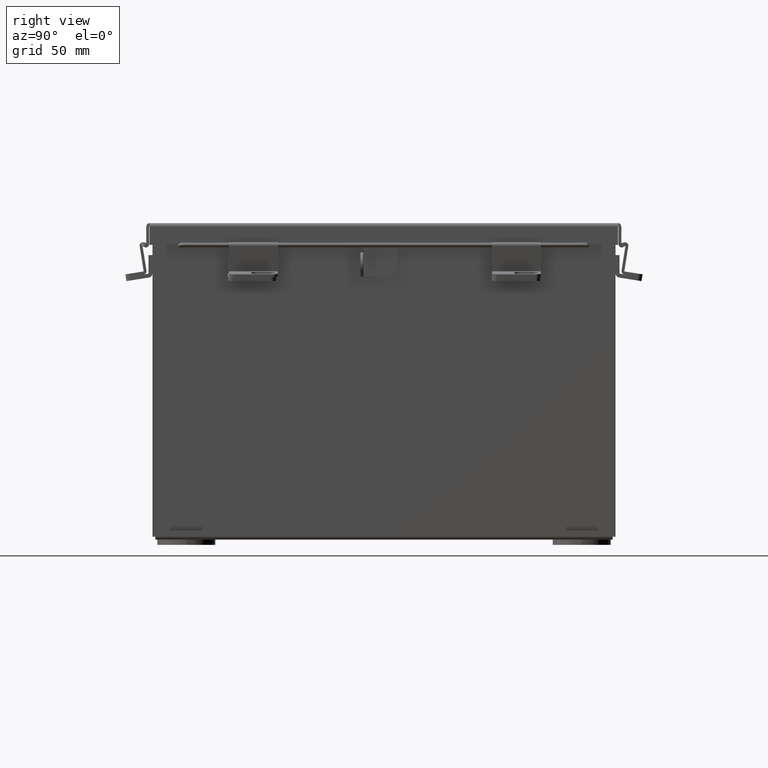
[diagram: clean part render]
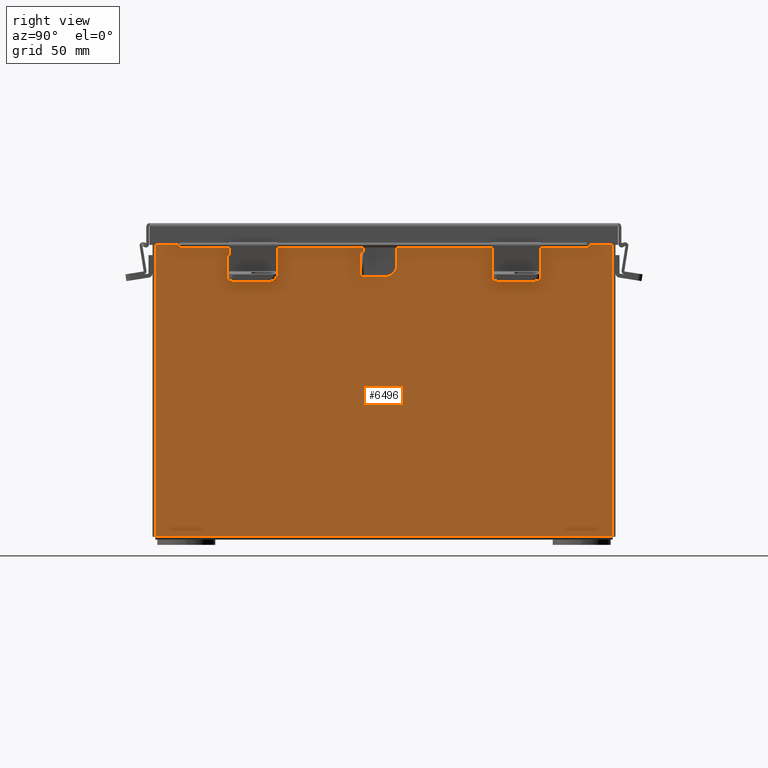
[diagram: same view with one face highlighted and labeled with its STEP entity id]
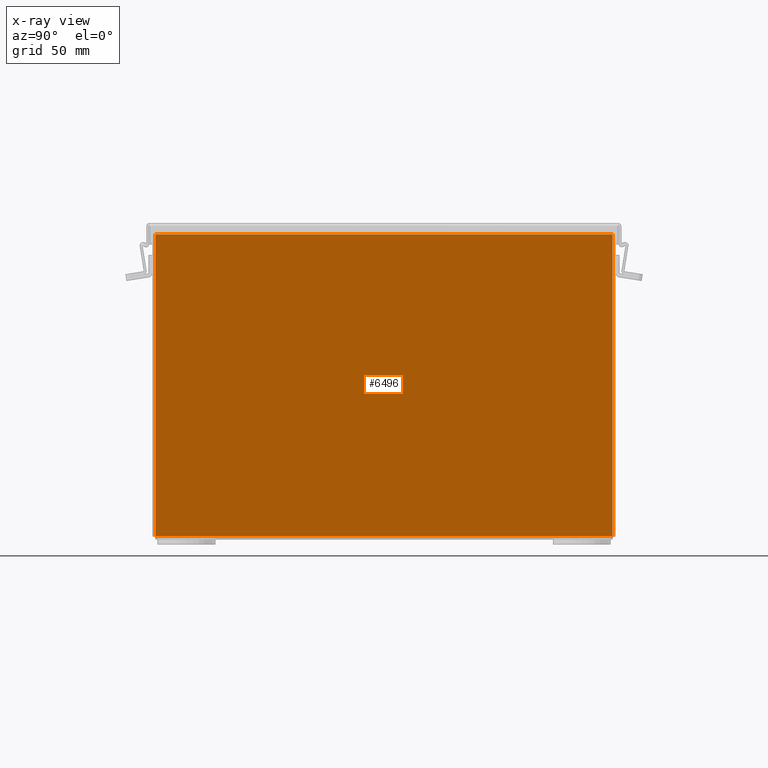
[diagram: x-ray of the same camera — body ghosted, the highlighted face saturated]
A machine part, right view. The second image highlights one B-rep face of the part: STEP entity #6496.
The next image is the same camera in x-ray: the body ghosted, the highlighted face saturated — about 0% of this face is hidden behind the body in this view.
In plain terms, the highlighted planar face has unit normal (-1, 0, 0).
Its self-contained STEP definition (entity closure, byte-faithful):
#1929 = CARTESIAN_POINT ( 'NONE',  ( 4.000000000000000900, 5.925299999999998200, 0.01299999999999984300 ) ) ;
#2137 = VERTEX_POINT ( 'NONE', #1929 ) ;
#2232 = VECTOR ( 'NONE', #7581, 39.37007874015748100 ) ;
#3109 = DIRECTION ( 'NONE',  ( 3.479795166820706300E-015, -1.391918066728282600E-016, 1.000000000000000000 ) ) ;
#3891 = EDGE_CURVE ( 'NONE', #12094, #4779, #14665, .T. ) ;
#4507 = DIRECTION ( 'NONE',  ( -1.000000000000000000, 0.0000000000000000000, 3.479795166820705900E-015 ) ) ;
#4779 = VERTEX_POINT ( 'NONE', #14804 ) ;
#4782 = ORIENTED_EDGE ( 'NONE', *, *, #6997, .F. ) ;
#4967 = CARTESIAN_POINT ( 'NONE',  ( 4.000000000000028400, 5.925299999999998200, 7.837599999999999200 ) ) ;
#5420 = LINE ( 'NONE', #6382, #2232 ) ;
#6008 = CARTESIAN_POINT ( 'NONE',  ( 4.000000000000000900, -5.925300000000000000, 0.01299999999999984300 ) ) ;
#6316 = VERTEX_POINT ( 'NONE', #6008 ) ;
#6382 = CARTESIAN_POINT ( 'NONE',  ( 4.000000000000000900, -5.925300000000000000, 0.01299999999999984300 ) ) ;
#6496 = ADVANCED_FACE ( 'NONE', ( #9727 ), #14309, .F. ) ;
#6856 = CARTESIAN_POINT ( 'NONE',  ( 4.000000000000000900, -5.925300000000000000, -1.417999849211356600E-014 ) ) ;
#6997 = EDGE_CURVE ( 'NONE', #2137, #6316, #5420, .T. ) ;
#7581 = DIRECTION ( 'NONE',  ( -0.0000000000000000000, -1.000000000000000000, -0.0000000000000000000 ) ) ;
#7815 = VECTOR ( 'NONE', #15304, 39.37007874015748100 ) ;
#7879 = EDGE_LOOP ( 'NONE', ( #9602, #13348, #4782, #10062 ) ) ;
#8383 = DIRECTION ( 'NONE',  ( -0.0000000000000000000, -1.000000000000000000, -0.0000000000000000000 ) ) ;
#8550 = EDGE_CURVE ( 'NONE', #4779, #6316, #11015, .T. ) ;
#8733 = CARTESIAN_POINT ( 'NONE',  ( 4.000000000000000900, 0.0000000000000000000, -1.417999849211356600E-014 ) ) ;
#9300 = CARTESIAN_POINT ( 'NONE',  ( 4.000000000000028400, 5.925299999999997300, 7.837599999999999200 ) ) ;
#9602 = ORIENTED_EDGE ( 'NONE', *, *, #3891, .T. ) ;
#9727 = FACE_OUTER_BOUND ( 'NONE', #7879, .T. ) ;
#10062 = ORIENTED_EDGE ( 'NONE', *, *, #11418, .T. ) ;
#10127 = AXIS2_PLACEMENT_3D ( 'NONE', #8733, #4507, #15406 ) ;
#10956 = VECTOR ( 'NONE', #3109, 39.37007874015748100 ) ;
#11015 = LINE ( 'NONE', #6856, #7815 ) ;
#11418 = EDGE_CURVE ( 'NONE', #2137, #12094, #14161, .T. ) ;
#12094 = VERTEX_POINT ( 'NONE', #9300 ) ;
#13348 = ORIENTED_EDGE ( 'NONE', *, *, #8550, .T. ) ;
#14161 = LINE ( 'NONE', #15074, #10956 ) ;
#14300 = VECTOR ( 'NONE', #8383, 39.37007874015748100 ) ;
#14309 = PLANE ( 'NONE',  #10127 ) ;
#14665 = LINE ( 'NONE', #4967, #14300 ) ;
#14804 = CARTESIAN_POINT ( 'NONE',  ( 4.000000000000028400, -5.925300000000000000, 7.837599999999999200 ) ) ;
#15074 = CARTESIAN_POINT ( 'NONE',  ( 4.000000000000000900, 5.925300000000000000, -1.335190706903408600E-014 ) ) ;
#15304 = DIRECTION ( 'NONE',  ( -3.479795166820706300E-015, 0.0000000000000000000, -1.000000000000000000 ) ) ;
#15406 = DIRECTION ( 'NONE',  ( 3.479795166820705900E-015, 0.0000000000000000000, 1.000000000000000000 ) ) ;